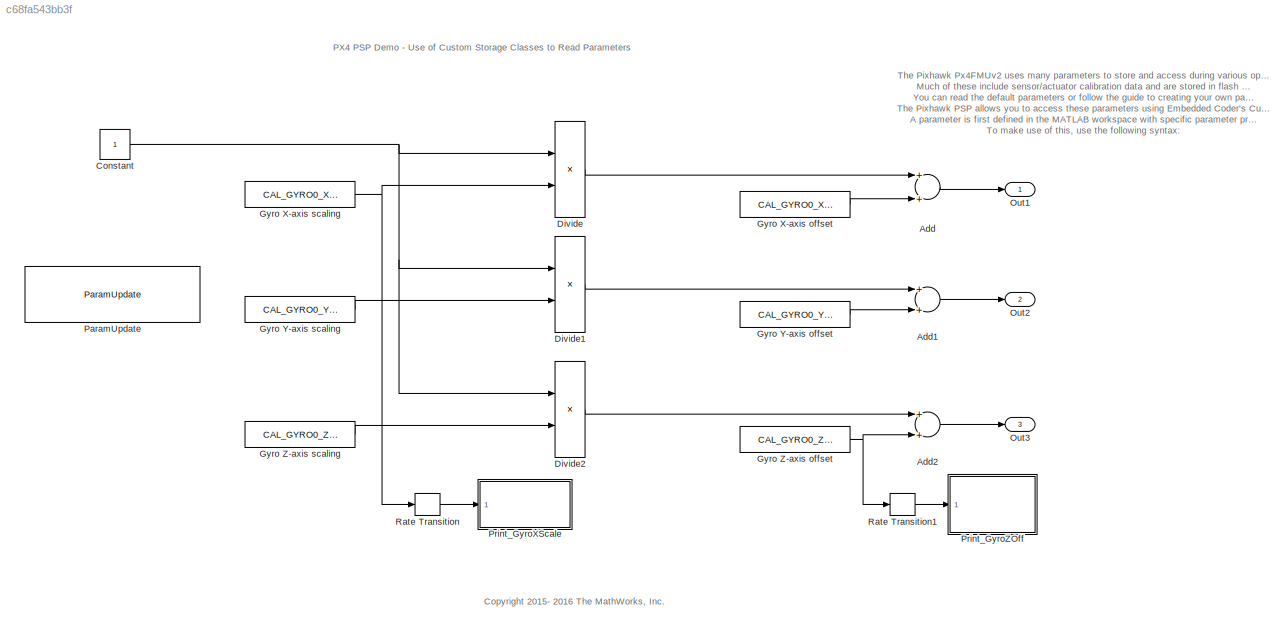
MODEL slx_c68fa543bb3f
KIND model
CONFIG AbsTol = auto
CONFIG EnableMultiTasking = on
CONFIG FixedStep = auto
CONFIG InitFcn = CAL_GYRO0_XSCALE = Pixhawk_CSC.Parameter( {single(1), 'CAL_GYRO0_XSCALE'}  )\nCAL_GYRO0_YSCALE = Pixhawk_CSC.Parameter( {single(1), 'CAL_GYRO0_YSCALE'}  )\nCAL_GYRO0_ZSCALE = Pixhawk_CSC.Parameter( {single(1), 'CAL_GYRO0_ZSCALE'}  )\n\nCAL_GYRO0_XOFF = Pixhawk_CSC.Parameter( {single(0), 'CAL_GYRO0_XOFF'} )\nCAL_GYRO0_YOFF = Pixhawk_CSC.Parameter( {single(0), 'CAL_GYRO0_YOFF'} )\nCAL_GYRO0_ZOFF = Pixhawk...<+48ch>
CONFIG MaxStep = auto
CONFIG MinStep = auto
CONFIG RelTol = 1e-3
CONFIG SampleTimeConstraint = Unconstrained
CONFIG Solver = FixedStepAuto
CONFIG SolverName = FixedStepAuto
CONFIG StartTime = 0.0
CONFIG StopTime = inf
BLOCK [Sum] Add
  InputSameDT = off
  OutDataTypeStr = Inherit: Inherit via internal rule
  Ports = [2, 1]
  SaturateOnIntegerOverflow = off
BLOCK [Sum] Add1
  InputSameDT = off
  OutDataTypeStr = Inherit: Inherit via internal rule
  Ports = [2, 1]
  SaturateOnIntegerOverflow = off
BLOCK [Sum] Add2
  InputSameDT = off
  OutDataTypeStr = Inherit: Inherit via internal rule
  Ports = [2, 1]
  SaturateOnIntegerOverflow = off
BLOCK [Constant] Constant
  OutDataTypeStr = single
  SampleTime = 1/10
BLOCK [Product] Divide
  InputSameDT = off
  Inputs = */
  OutDataTypeStr = Inherit: Inherit via internal rule
  Ports = [2, 1]
  RndMeth = Floor
  SaturateOnIntegerOverflow = off
BLOCK [Product] Divide1
  InputSameDT = off
  Inputs = */
  OutDataTypeStr = Inherit: Inherit via internal rule
  Ports = [2, 1]
  RndMeth = Floor
  SaturateOnIntegerOverflow = off
BLOCK [Product] Divide2
  InputSameDT = off
  Inputs = */
  OutDataTypeStr = Inherit: Inherit via internal rule
  Ports = [2, 1]
  RndMeth = Floor
  SaturateOnIntegerOverflow = off
BLOCK [Constant] Gyro X-axis offset	
  SampleTime = -1
  Value = CAL_GYRO0_XOFF
BLOCK [Constant] Gyro X-axis scaling
  SampleTime = -1
  Value = CAL_GYRO0_XSCALE
BLOCK [Constant] Gyro Y-axis offset
  SampleTime = -1
  Value = CAL_GYRO0_YOFF
BLOCK [Constant] Gyro Y-axis scaling
  SampleTime = -1
  Value = CAL_GYRO0_YSCALE
BLOCK [Constant] Gyro Z-axis offset
  SampleTime = -1
  Value = CAL_GYRO0_ZOFF
BLOCK [Constant] Gyro Z-axis scaling
  SampleTime = -1
  Value = CAL_GYRO0_ZSCALE
BLOCK [Outport] Out1
  IconDisplay = Port number
BLOCK [Outport] Out2
  IconDisplay = Port number
  Port = 2
BLOCK [Outport] Out3
  IconDisplay = Port number
  Port = 3
BLOCK [Reference] ParamUpdate  REF=pixhawk_slib_misc_utils/ParamUpdate
  Ports = []
  SourceBlock = pixhawk_slib_misc_utils/ParamUpdate
  SourceProductName = Pixhawk Target Blocks
  UserDataPersistent = on
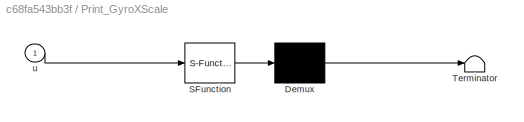
BLOCK [SubSystem] Print_GyroXScale
  ErrorFcn = Stateflow.Translate.translate
  PermitHierarchicalResolution = ExplicitOnly
  Ports = [1]
  RequestExecContextInheritance = off
  SFBlockType = MATLAB Function
  TreatAsAtomicUnit = on
  Variant = off
BLOCK [Demux] Print_GyroXScale/ Demux 
  Outputs = 1
  Ports = [1, 1]
BLOCK [S-Function] Print_GyroXScale/ SFunction 
  EnableBusSupport = off
  FunctionName = sf_sfun
  PortCounts = [1 1]
  Ports = [1, 1]
  SFcnIsStateOwnerBlock = off
  SFunctionDeploymentMode = off
  Tag = Stateflow S-Function px4demo_ParameterUpdate_CSC_example 2
BLOCK [Terminator] Print_GyroXScale/ Terminator 
BLOCK [Inport] Print_GyroXScale/u
  IconDisplay = Port number
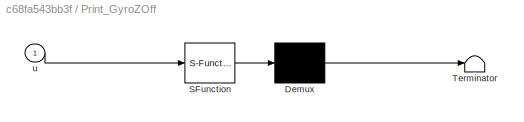
BLOCK [SubSystem] Print_GyroZOff
  ErrorFcn = Stateflow.Translate.translate
  PermitHierarchicalResolution = ExplicitOnly
  Ports = [1]
  RequestExecContextInheritance = off
  SFBlockType = MATLAB Function
  TreatAsAtomicUnit = on
  Variant = off
BLOCK [Demux] Print_GyroZOff/ Demux 
  Outputs = 1
  Ports = [1, 1]
BLOCK [S-Function] Print_GyroZOff/ SFunction 
  EnableBusSupport = off
  FunctionName = sf_sfun
  PortCounts = [1 1]
  Ports = [1, 1]
  SFcnIsStateOwnerBlock = off
  SFunctionDeploymentMode = off
  Tag = Stateflow S-Function px4demo_ParameterUpdate_CSC_example 1
BLOCK [Terminator] Print_GyroZOff/ Terminator 
BLOCK [Inport] Print_GyroZOff/u
  IconDisplay = Port number
BLOCK [RateTransition] Rate Transition
  OutPortSampleTime = 0.5
BLOCK [RateTransition] Rate Transition1
  OutPortSampleTime = 0.5
ANNOTATION (root): PX4 PSP Demo - Use of Custom Storage Classes to Read Parameters
ANNOTATION (root): The Pixhawk Px4FMUv2 uses many parameters to store and access during various operations. Much of these include sensor/actuator calibration data and are stored in flash memory which is accessible by MTD via NuttX. You can read the default parameters or follow the guide to creating your own parameters . The Pixhawk PSP allows you to access these parameters using Embedded Coder's Custom Storage Class...<+950ch>
ANNOTATION (root): <copyright redacted>
LINE Add1:1 -> Out2:1
LINE Add2:1 -> Out3:1
LINE Add:1 -> Out1:1
NET Constant:1 -> Divide1:1, Divide2:1, Divide:1
LINE Divide1:1 -> Add1:1
LINE Divide2:1 -> Add2:1
LINE Divide:1 -> Add:1
LINE Gyro X-axis offset	:1 -> Add:2
NET Gyro X-axis scaling:1 -> Divide:2, Rate Transition:1
LINE Gyro Y-axis offset:1 -> Add1:2
LINE Gyro Y-axis scaling:1 -> Divide1:2
NET Gyro Z-axis offset:1 -> Add2:2, Rate Transition1:1
LINE Gyro Z-axis scaling:1 -> Divide2:2
LINE Rate Transition1:1 -> Print_GyroZOff:1
LINE Rate Transition:1 -> Print_GyroXScale:1
note: NET lines group one-source signal fan-out (src -> all destinations, sorted); 1:1 wires keep LINE
CHART Print_GyroZOff states=1 transitions=1
  STATE_LABEL 'eML_blk_kernel()'
  STATE_LABEL "SCRIPT:\nfunction print_fcn(u)\nif coder.target('rtw')\nmsg_str = coder.const(['CAL_GYRO0_ZOFF = %8.4f',uint8(10),uint8(0)]);\ncoder.ceval('PX4_INFO',coder.rref(msg_str),u);\nend\nend\n"
CHART Print_GyroXScale states=1 transitions=1
  STATE_LABEL 'eML_blk_kernel()'
  STATE_LABEL "SCRIPT:\nfunction print_fcn(u)\nif coder.target('rtw')\nmsg_str = coder.const(['CAL_GYRO0_XSCALE = %8.4f',uint8(10),uint8(0)]);\ncoder.ceval('PX4_INFO',coder.rref(msg_str),u);\nend\nend\n"
